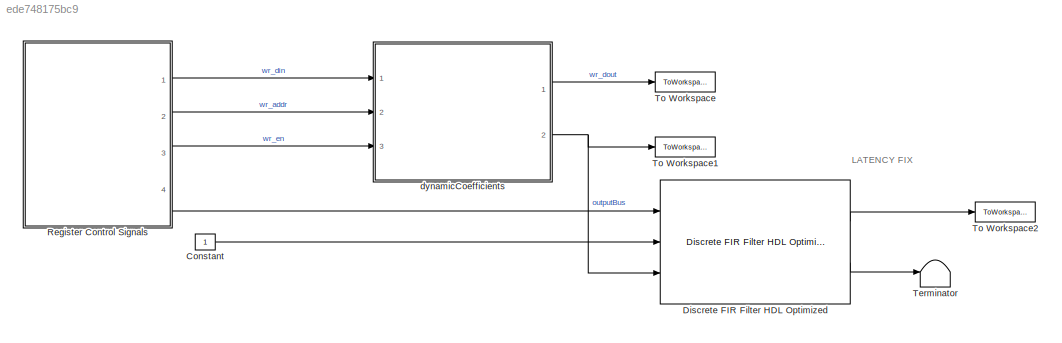
MODEL slx_ede748175bc9
KIND model
CONFIG AbsTol = auto
CONFIG EnableMultiTasking = off
CONFIG FixedStep = auto
CONFIG InitFcn = init;\n
CONFIG MaxStep = auto
CONFIG MinStep = auto
CONFIG RelTol = 1e-3
CONFIG SampleTimeConstraint = Unconstrained
CONFIG Solver = FixedStepAuto
CONFIG SolverName = FixedStepAuto
CONFIG StartTime = 0.0
CONFIG StopFcn = output;
CONFIG StopTime = stop_time
BLOCK [Constant] Constant
  OutDataTypeStr = boolean
  SampleTime = -1
BLOCK [Reference] Discrete FIR Filter HDL Optimized  REF=dsphdlfiltering/Discrete FIR Filter
HDL Optimized
  Ports = [3, 2]
  SourceBlock = dsphdlfiltering/Discrete FIR Filter\nHDL Optimized
  SourceProductBaseCode = DS
  SourceProductName = DSP System Toolbox
  SourceType = Discrete FIR Filter HDL Optimized
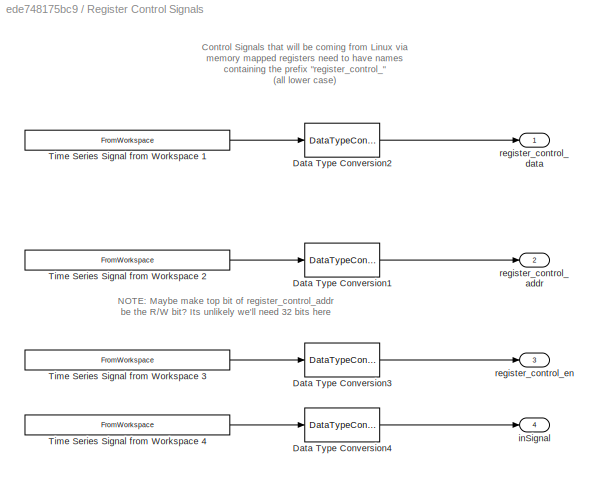
BLOCK [SubSystem] Register Control Signals
  Ports = [0, 4]
  RequestExecContextInheritance = off
BLOCK [DataTypeConversion] Register Control Signals/Data Type Conversion1
  OutDataTypeStr = fixdt(0,W_Bits,0)
  RndMeth = Floor
  SaturateOnIntegerOverflow = off
BLOCK [DataTypeConversion] Register Control Signals/Data Type Conversion2
  OutDataTypeStr = fixdt(1,W_Bits,0)
  RndMeth = Floor
  SaturateOnIntegerOverflow = off
BLOCK [DataTypeConversion] Register Control Signals/Data Type Conversion3
  OutDataTypeStr = boolean
  RndMeth = Floor
  SaturateOnIntegerOverflow = off
BLOCK [DataTypeConversion] Register Control Signals/Data Type Conversion4
  OutDataTypeStr = fixdt(1,W_Bits,W_Bits/2)
  RndMeth = Floor
  SaturateOnIntegerOverflow = off
BLOCK [FromWorkspace] Register Control Signals/Time Series Signal from Workspace 1
  OutDataTypeStr = double
  OutputAfterFinalValue = Holding final value
  SampleTime = Ts_system
  VariableName = Register_Data
  ZeroCross = on
BLOCK [FromWorkspace] Register Control Signals/Time Series Signal from Workspace 2
  OutDataTypeStr = double
  OutputAfterFinalValue = Holding final value
  SampleTime = Ts_system
  VariableName = Register_Addr
  ZeroCross = on
BLOCK [FromWorkspace] Register Control Signals/Time Series Signal from Workspace 3
  OutDataTypeStr = double
  OutputAfterFinalValue = Holding final value
  SampleTime = Ts_system
  VariableName = Register_Write_En
  ZeroCross = on
BLOCK [FromWorkspace] Register Control Signals/Time Series Signal from Workspace 4
  OutDataTypeStr = double
  OutputAfterFinalValue = Holding final value
  SampleTime = Ts_system
  VariableName = inSignal
  ZeroCross = on
BLOCK [Outport] Register Control Signals/inSignal
  IconDisplay = Port number
  Port = 4
  VectorParamsAs1DForOutWhenUnconnected = off
BLOCK [Outport] Register Control Signals/register_control_addr
  IconDisplay = Port number
  Port = 2
  VectorParamsAs1DForOutWhenUnconnected = off
BLOCK [Outport] Register Control Signals/register_control_data
  IconDisplay = Port number
  VectorParamsAs1DForOutWhenUnconnected = off
BLOCK [Outport] Register Control Signals/register_control_en
  IconDisplay = Port number
  Port = 3
  VectorParamsAs1DForOutWhenUnconnected = off
BLOCK [Terminator] Terminator
BLOCK [ToWorkspace] To Workspace
  FixptAsFi = on
  MaxDataPoints = inf
  Ports = [1]
  SampleTime = -1
  SaveFormat = Timeseries
  VariableName = wr_dout
BLOCK [ToWorkspace] To Workspace1
  FixptAsFi = on
  MaxDataPoints = inf
  Ports = [1]
  SampleTime = -1
  SaveFormat = Timeseries
  VariableName = outputBus
BLOCK [ToWorkspace] To Workspace2
  FixptAsFi = on
  MaxDataPoints = inf
  Ports = [1]
  SampleTime = -1
  SaveFormat = Timeseries
  VariableName = outSignal
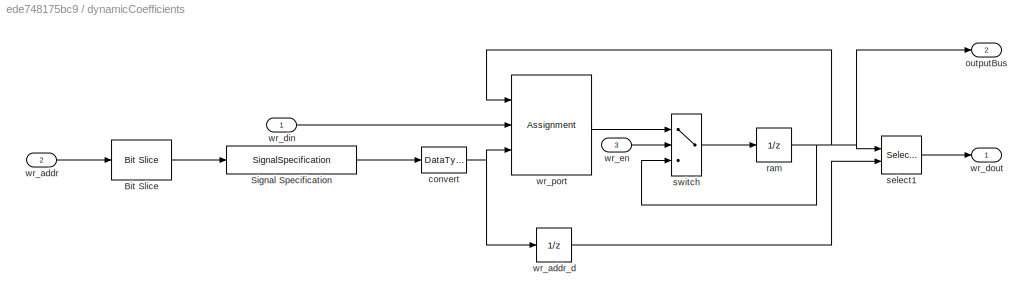
BLOCK [SubSystem] dynamicCoefficients
  Ports = [3, 2]
  RequestExecContextInheritance = off
BLOCK [Reference] dynamicCoefficients/Bit Slice  REF=hdlsllib/Logic and Bit
Operations/Bit Slice
  Ports = [1, 1]
  SourceBlock = hdlsllib/Logic and Bit\nOperations/Bit Slice
  SourceProductBaseCode = SL
  SourceProductName = Simulink
  SourceType = Bit Slice
BLOCK [SignalSpecification] dynamicCoefficients/Signal Specification
  Dimensions = 1
  OutDataTypeStr = fixdt(0,ram_size,0)
BLOCK [DataTypeConversion] dynamicCoefficients/convert
  RndMeth = Floor
  SaturateOnIntegerOverflow = off
BLOCK [Outport] dynamicCoefficients/outputBus
  IconDisplay = Port number
  Port = 2
  VectorParamsAs1DForOutWhenUnconnected = off
BLOCK [UnitDelay] dynamicCoefficients/ram
  HasFrameUpgradeWarning = on
  SampleTime = -1
BLOCK [Selector] dynamicCoefficients/select1
  IndexMode = Zero-based
  IndexOptions = Index vector (port)
  Indices = [1 3]
  InputPortWidth = 2^ram_size
  OutputSizes = 1
  Ports = [2, 1]
BLOCK [Switch] dynamicCoefficients/switch
  Criteria = u2 ~= 0
  InputSameDT = off
  SaturateOnIntegerOverflow = off
BLOCK [Inport] dynamicCoefficients/wr_addr
  IconDisplay = Port number
  Port = 2
BLOCK [UnitDelay] dynamicCoefficients/wr_addr_d
  HasFrameUpgradeWarning = on
  SampleTime = -1
BLOCK [Inport] dynamicCoefficients/wr_din
  IconDisplay = Port number
BLOCK [Outport] dynamicCoefficients/wr_dout
  IconDisplay = Port number
  VectorParamsAs1DForOutWhenUnconnected = off
BLOCK [Inport] dynamicCoefficients/wr_en
  IconDisplay = Port number
  OutDataTypeStr = boolean
  Port = 3
BLOCK [Assignment] dynamicCoefficients/wr_port
  IndexMode = Zero-based
  IndexOptions = Index vector (port)
  Indices = 1
  OutputSizes = [1 1]
  Ports = [3, 1]
ANNOTATION (root): LATENCY FIX
ANNOTATION Register Control Signals: Control Signals that will be coming from Linux via memory mapped registers need to have names containing the prefix "register_control_" (all lower case)
ANNOTATION Register Control Signals: NOTE: Maybe make top bit of register_control_addr be the R/W bit? Its unlikely we'll need 32 bits here
LINE Constant:1 -> Discrete FIR Filter HDL Optimized:2
LINE Discrete FIR Filter HDL Optimized:1 -> To Workspace2:1
LINE Discrete FIR Filter HDL Optimized:2 -> Terminator:1
LINE Register Control Signals/Data Type Conversion1:1 -> Register Control Signals/register_control_addr:1
LINE Register Control Signals/Data Type Conversion2:1 -> Register Control Signals/register_control_data:1
LINE Register Control Signals/Data Type Conversion3:1 -> Register Control Signals/register_control_en:1
LINE Register Control Signals/Data Type Conversion4:1 -> Register Control Signals/inSignal:1
LINE Register Control Signals/Time Series Signal from Workspace 1:1 -> Register Control Signals/Data Type Conversion2:1
LINE Register Control Signals/Time Series Signal from Workspace 2:1 -> Register Control Signals/Data Type Conversion1:1
LINE Register Control Signals/Time Series Signal from Workspace 3:1 -> Register Control Signals/Data Type Conversion3:1
LINE Register Control Signals/Time Series Signal from Workspace 4:1 -> Register Control Signals/Data Type Conversion4:1
LINE Register Control Signals:1 -> dynamicCoefficients:1
LINE Register Control Signals:2 -> dynamicCoefficients:2
LINE Register Control Signals:3 -> dynamicCoefficients:3
LINE Register Control Signals:4 -> Discrete FIR Filter HDL Optimized:1
LINE dynamicCoefficients/Bit Slice:1 -> dynamicCoefficients/Signal Specification:1
LINE dynamicCoefficients/Signal Specification:1 -> dynamicCoefficients/convert:1
NET dynamicCoefficients/convert:1 -> dynamicCoefficients/wr_addr_d:1, dynamicCoefficients/wr_port:3
NET dynamicCoefficients/ram:1 -> dynamicCoefficients/outputBus:1, dynamicCoefficients/select1:1, dynamicCoefficients/switch:3, dynamicCoefficients/wr_port:1
LINE dynamicCoefficients/select1:1 -> dynamicCoefficients/wr_dout:1
LINE dynamicCoefficients/switch:1 -> dynamicCoefficients/ram:1
LINE dynamicCoefficients/wr_addr:1 -> dynamicCoefficients/Bit Slice:1
LINE dynamicCoefficients/wr_addr_d:1 -> dynamicCoefficients/select1:2
LINE dynamicCoefficients/wr_din:1 -> dynamicCoefficients/wr_port:2
LINE dynamicCoefficients/wr_en:1 -> dynamicCoefficients/switch:2
LINE dynamicCoefficients/wr_port:1 -> dynamicCoefficients/switch:1
LINE dynamicCoefficients:1 -> To Workspace:1
NET dynamicCoefficients:2 -> Discrete FIR Filter HDL Optimized:3, To Workspace1:1
note: NET lines group one-source signal fan-out (src -> all destinations, sorted); 1:1 wires keep LINE
